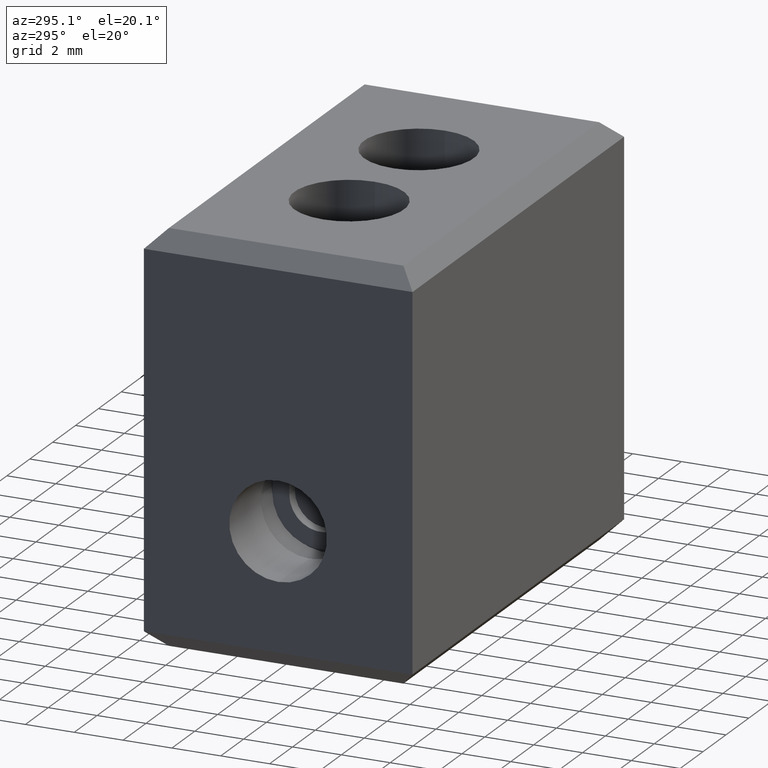
[diagram: clean part render]
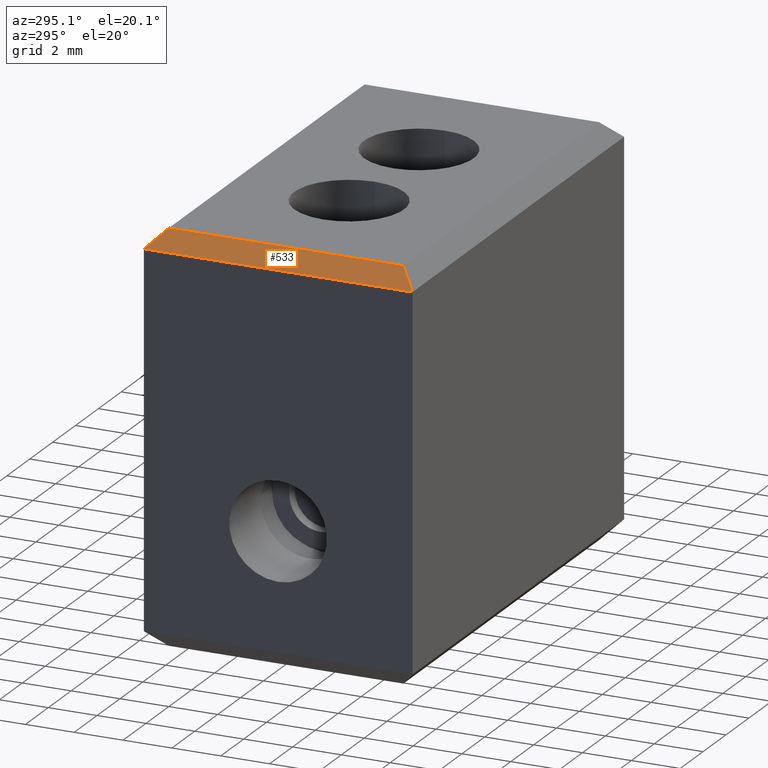
[diagram: same view with one face highlighted and labeled with its STEP entity id]
A machine part, auxiliary view. The second image highlights one B-rep face of the part: STEP entity #533.
In plain terms, the highlighted planar face has unit normal (-0.7071, 0, 0.7071).
Its self-contained STEP definition (entity closure, byte-faithful):
#30 = VERTEX_POINT ( 'NONE', #2136 ) ;
#35 = VERTEX_POINT ( 'NONE', #2186 ) ;
#45 = VERTEX_POINT ( 'NONE', #2203 ) ;
#139 = EDGE_LOOP ( 'NONE', ( #2121, #2113, #2130, #2149 ) ) ;
#365 = EDGE_CURVE ( 'NONE', #30, #45, #2357, .T. ) ;
#409 = EDGE_CURVE ( 'NONE', #30, #35, #1722, .T. ) ;
#515 = EDGE_CURVE ( 'NONE', #2181, #35, #693, .T. ) ;
#533 = ADVANCED_FACE ( 'NONE', ( #762 ), #754, .T. ) ;
#565 = EDGE_CURVE ( 'NONE', #2181, #45, #1615, .T. ) ;
#693 = LINE ( 'NONE', #716, #1184 ) ;
#716 = CARTESIAN_POINT ( 'NONE',  ( -7.774240673103754800, 11.00255262786756200, 15.80000000000000100 ) ) ;
#717 = DIRECTION ( 'NONE',  ( 0.0000000000000000000, 1.000000000000000000, 0.0000000000000000000 ) ) ;
#754 = PLANE ( 'NONE',  #1247 ) ;
#755 = CARTESIAN_POINT ( 'NONE',  ( -7.074240673103759000, 9.753326479656987400, 16.50000000000000000 ) ) ;
#758 = DIRECTION ( 'NONE',  ( -0.7071067811865492400, 0.0000000000000000000, 0.7071067811865458000 ) ) ;
#759 = DIRECTION ( 'NONE',  ( 0.7071067811865458000, 0.0000000000000000000, 0.7071067811865492400 ) ) ;
#762 = FACE_OUTER_BOUND ( 'NONE', #139, .T. ) ;
#1031 = VECTOR ( 'NONE', #2358, 1000.000000000000000 ) ;
#1101 = VECTOR ( 'NONE', #1724, 1000.000000000000100 ) ;
#1184 = VECTOR ( 'NONE', #717, 1000.000000000000000 ) ;
#1247 = AXIS2_PLACEMENT_3D ( 'NONE', #755, #758, #759 ) ;
#1278 = VECTOR ( 'NONE', #1585, 1000.000000000000200 ) ;
#1480 = CARTESIAN_POINT ( 'NONE',  ( -7.774240673103754800, 0.002552627867608231800, 15.80000000000000100 ) ) ;
#1585 = DIRECTION ( 'NONE',  ( 0.5773502691896248400, 0.5773502691896246200, 0.5773502691896277300 ) ) ;
#1615 = LINE ( 'NONE', #1616, #1278 ) ;
#1616 = CARTESIAN_POINT ( 'NONE',  ( -7.307574011065046400, 0.4692192899063172800, 16.26666666203871600 ) ) ;
#1722 = LINE ( 'NONE', #1723, #1101 ) ;
#1723 = CARTESIAN_POINT ( 'NONE',  ( -7.307574011065045600, 10.53588596582885200, 16.26666666203871600 ) ) ;
#1724 = DIRECTION ( 'NONE',  ( -0.5773502691896248400, 0.5773502691896248400, -0.5773502691896276200 ) ) ;
#2113 = ORIENTED_EDGE ( 'NONE', *, *, #515, .F. ) ;
#2121 = ORIENTED_EDGE ( 'NONE', *, *, #409, .T. ) ;
#2130 = ORIENTED_EDGE ( 'NONE', *, *, #565, .T. ) ;
#2136 = CARTESIAN_POINT ( 'NONE',  ( -7.074240673103759000, 10.30255262786756600, 16.50000000000000000 ) ) ;
#2149 = ORIENTED_EDGE ( 'NONE', *, *, #365, .F. ) ;
#2181 = VERTEX_POINT ( 'NONE', #1480 ) ;
#2186 = CARTESIAN_POINT ( 'NONE',  ( -7.774240673103754800, 11.00255262786756200, 15.80000000000000100 ) ) ;
#2203 = CARTESIAN_POINT ( 'NONE',  ( -7.074240673103759000, 0.7025526278676037500, 16.50000000000000000 ) ) ;
#2357 = LINE ( 'NONE', #2359, #1031 ) ;
#2358 = DIRECTION ( 'NONE',  ( 0.0000000000000000000, -1.000000000000000000, 0.0000000000000000000 ) ) ;
#2359 = CARTESIAN_POINT ( 'NONE',  ( -7.074240673103759000, 0.002552627867608231800, 16.50000000000000000 ) ) ;